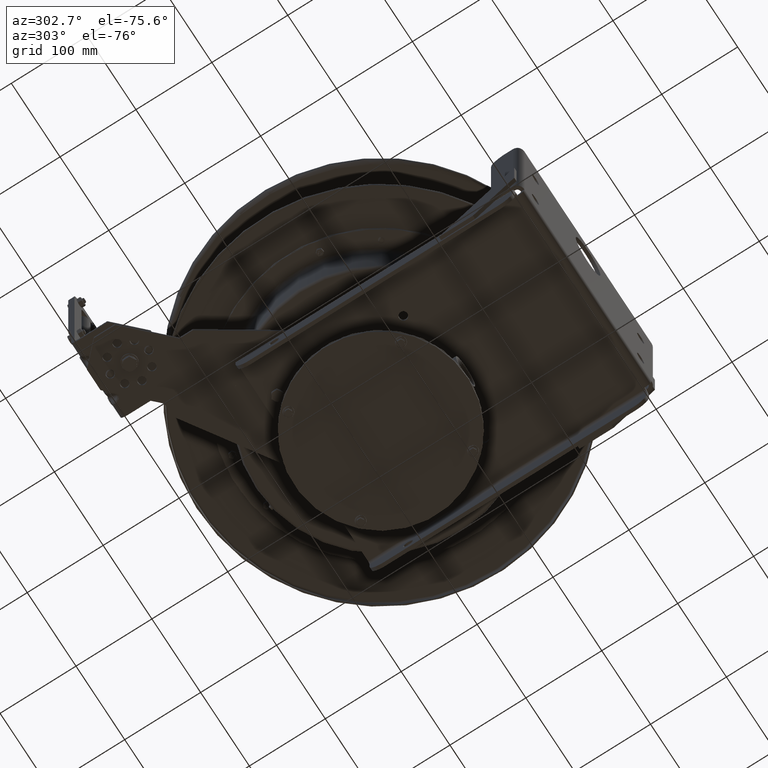
[diagram: clean part render]
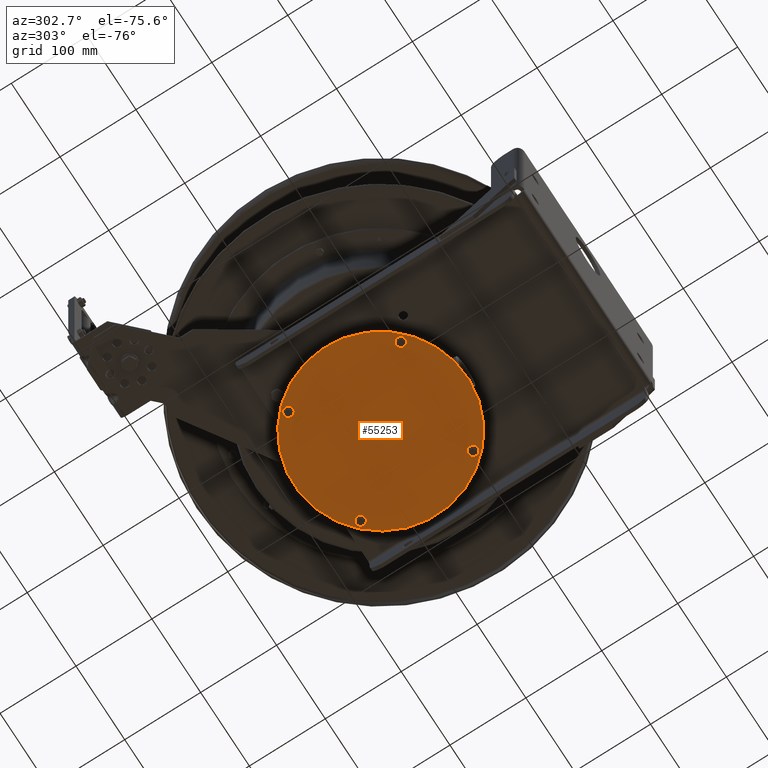
[diagram: same view with one face highlighted and labeled with its STEP entity id]
A machine part, auxiliary view. The second image highlights one B-rep face of the part: STEP entity #55253.
In plain terms, the highlighted planar face has unit normal (0, 0, -1).
Its self-contained STEP definition (entity closure, byte-faithful):
#3760=PLANE('',#60990);
#10123=FACE_BOUND('',#17288,.T.);
#10124=FACE_BOUND('',#17289,.T.);
#10125=FACE_BOUND('',#17290,.T.);
#10126=FACE_BOUND('',#17291,.T.);
#12824=FACE_OUTER_BOUND('',#17287,.T.);
#17287=EDGE_LOOP('',(#43152));
#17288=EDGE_LOOP('',(#43153));
#17289=EDGE_LOOP('',(#43154));
#17290=EDGE_LOOP('',(#43155));
#17291=EDGE_LOOP('',(#43156));
#21040=CIRCLE('',#60975,0.1405);
#21042=CIRCLE('',#60978,0.1405);
#21044=CIRCLE('',#60981,0.1405);
#21046=CIRCLE('',#60984,0.1405);
#21049=CIRCLE('',#60988,4.5);
#25138=VERTEX_POINT('',#98753);
#25140=VERTEX_POINT('',#98758);
#25142=VERTEX_POINT('',#98763);
#25144=VERTEX_POINT('',#98768);
#25147=VERTEX_POINT('',#98775);
#31440=EDGE_CURVE('',#25138,#25138,#21040,.T.);
#31442=EDGE_CURVE('',#25140,#25140,#21042,.T.);
#31444=EDGE_CURVE('',#25142,#25142,#21044,.T.);
#31446=EDGE_CURVE('',#25144,#25144,#21046,.T.);
#31449=EDGE_CURVE('',#25147,#25147,#21049,.T.);
#43152=ORIENTED_EDGE('',*,*,#31449,.T.);
#43153=ORIENTED_EDGE('',*,*,#31440,.T.);
#43154=ORIENTED_EDGE('',*,*,#31442,.T.);
#43155=ORIENTED_EDGE('',*,*,#31444,.T.);
#43156=ORIENTED_EDGE('',*,*,#31446,.T.);
#55253=ADVANCED_FACE('',(#12824,#10123,#10124,#10125,#10126),#3760,.T.);
#60975=AXIS2_PLACEMENT_3D('',#98754,#73437,#73438);
#60978=AXIS2_PLACEMENT_3D('',#98759,#73443,#73444);
#60981=AXIS2_PLACEMENT_3D('',#98764,#73449,#73450);
#60984=AXIS2_PLACEMENT_3D('',#98769,#73455,#73456);
#60988=AXIS2_PLACEMENT_3D('',#98776,#73463,#73464);
#60990=AXIS2_PLACEMENT_3D('',#98778,#73467,#73468);
#73437=DIRECTION('center_axis',(-7.04299852884744E-24,-3.87147032753441E-16,
1.));
#73438=DIRECTION('ref_axis',(0.707106781186547,-0.707106781186548,-2.73754287196057E-16));
#73443=DIRECTION('center_axis',(-7.04299852884744E-24,-3.87147032753441E-16,
1.));
#73444=DIRECTION('ref_axis',(-0.707106781186548,-0.707106781186547,-2.73754297156361E-16));
#73449=DIRECTION('center_axis',(-7.04299852884744E-24,-3.87147032753441E-16,
1.));
#73450=DIRECTION('ref_axis',(-0.707106781186548,0.707106781186548,2.73754287196057E-16));
#73455=DIRECTION('center_axis',(-7.04299852884744E-24,-3.87147032753441E-16,
1.));
#73456=DIRECTION('ref_axis',(0.707106781186548,0.707106781186548,2.73754297156361E-16));
#73463=DIRECTION('center_axis',(7.04299852884744E-24,3.87147032753441E-16,
-1.));
#73464=DIRECTION('ref_axis',(-0.707106781186547,-0.707106781186547,-2.73754297156361E-16));
#73467=DIRECTION('center_axis',(7.04299852884744E-24,3.87147032753441E-16,
-1.));
#73468=DIRECTION('ref_axis',(-0.707106781186546,-0.707106781186549,0.));
#98753=CARTESIAN_POINT('',(-2.6825330303622,13.7661639751512,-2.6141));
#98754=CARTESIAN_POINT('Origin',(-2.58318452760549,13.6668154723945,-2.6141));
#98758=CARTESIAN_POINT('',(-2.48383602484878,7.9325330303622,-2.6141));
#98759=CARTESIAN_POINT('Origin',(-2.58318452760549,7.83318452760549,-2.6141));
#98763=CARTESIAN_POINT('',(-8.3174669696378,7.73383602484878,-2.6141));
#98764=CARTESIAN_POINT('Origin',(-8.41681547239451,7.83318452760549,-2.6141));
#98768=CARTESIAN_POINT('',(-8.51616397515122,13.5674669696378,-2.6141));
#98769=CARTESIAN_POINT('Origin',(-8.41681547239451,13.6668154723945,-2.6141));
#98775=CARTESIAN_POINT('',(-2.31801948466054,13.9319805153395,-2.6141));
#98776=CARTESIAN_POINT('Origin',(-5.5,10.75,-2.6141));
#98778=CARTESIAN_POINT('Origin',(-5.5,10.75,-2.6141));